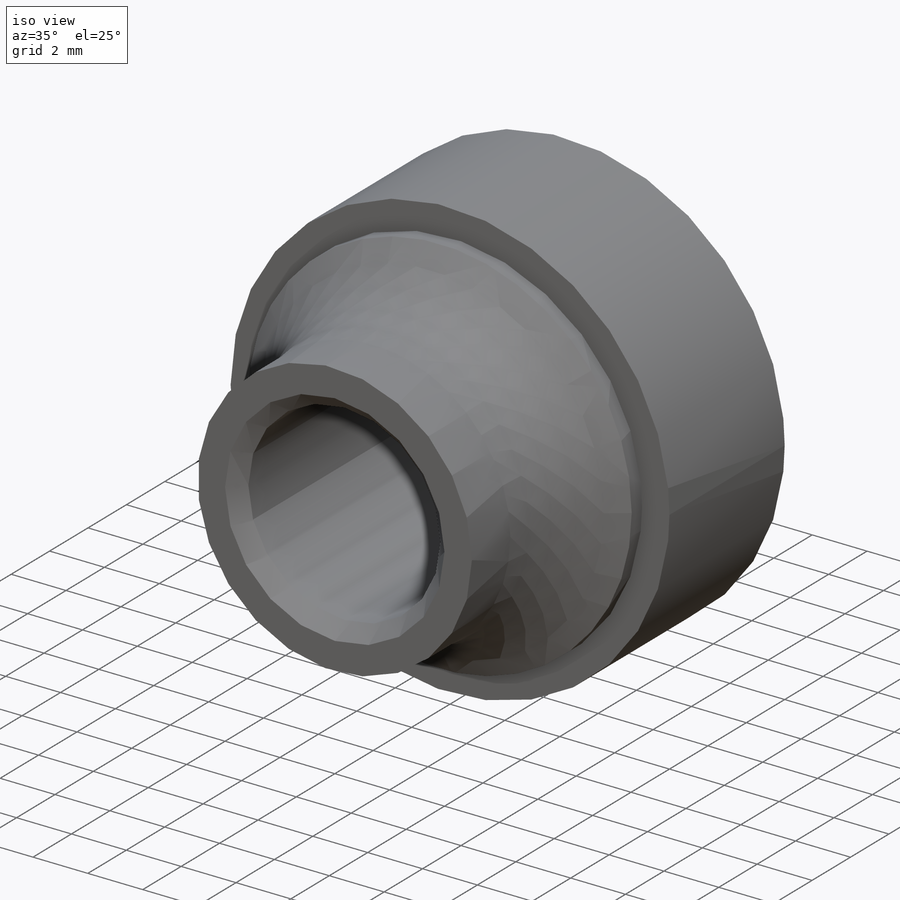
[diagram: iso view]
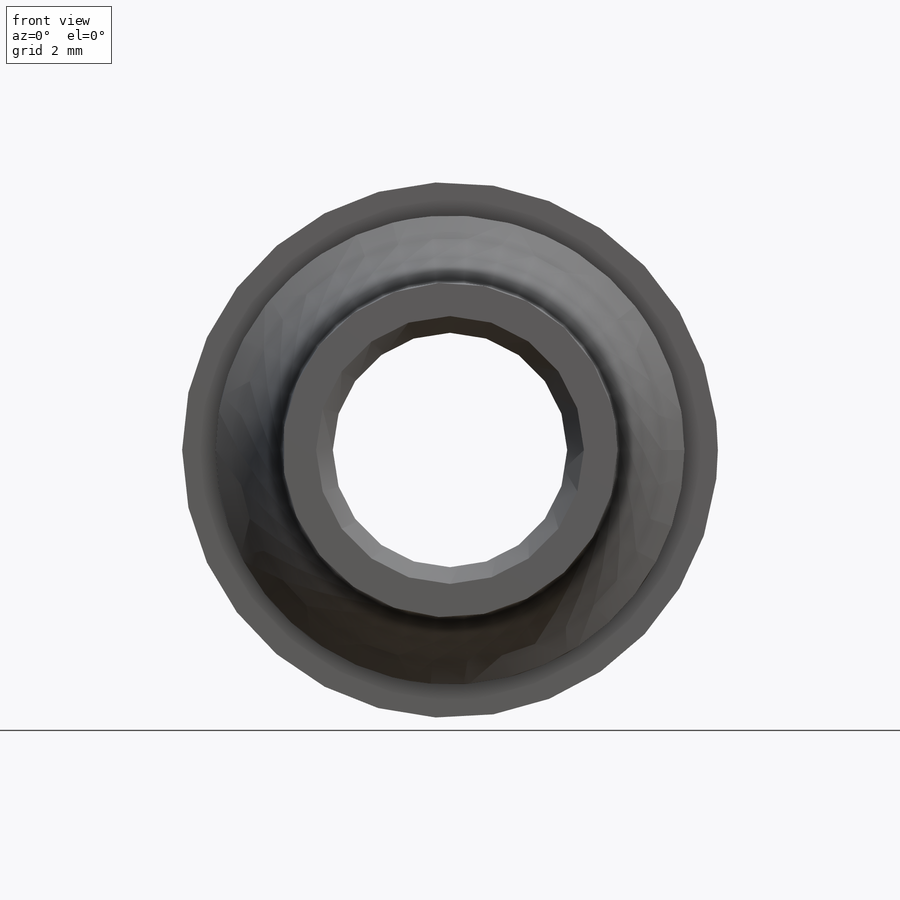
[diagram: front view]
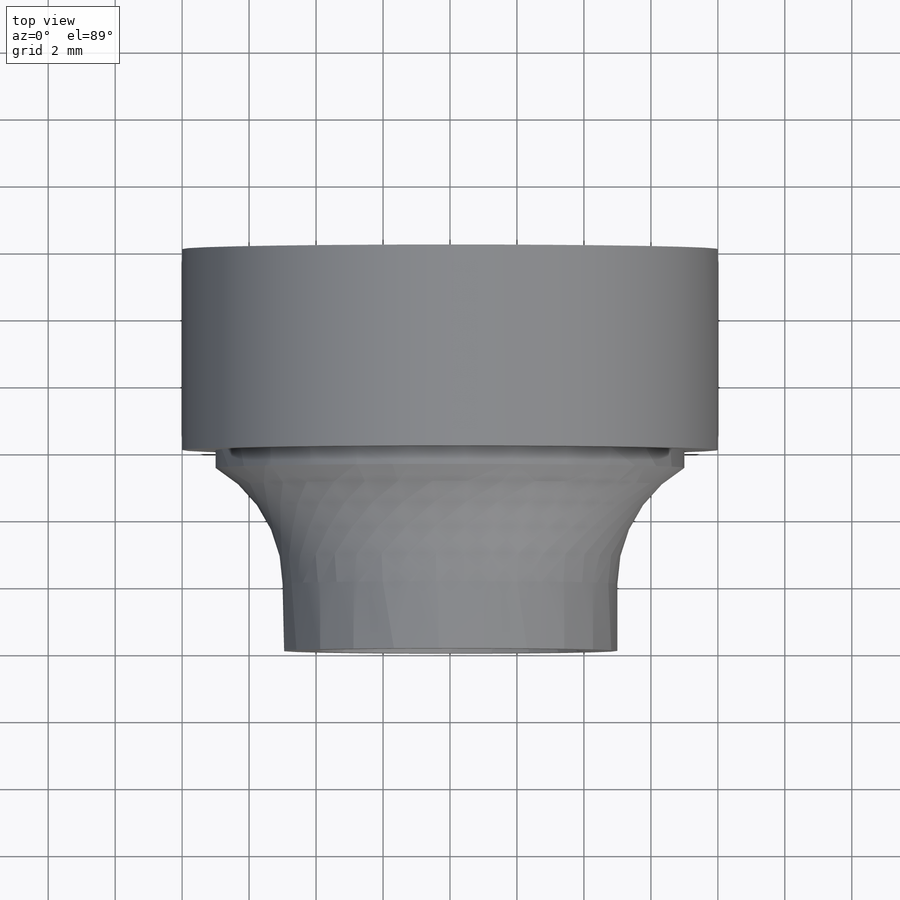
[diagram: top view]
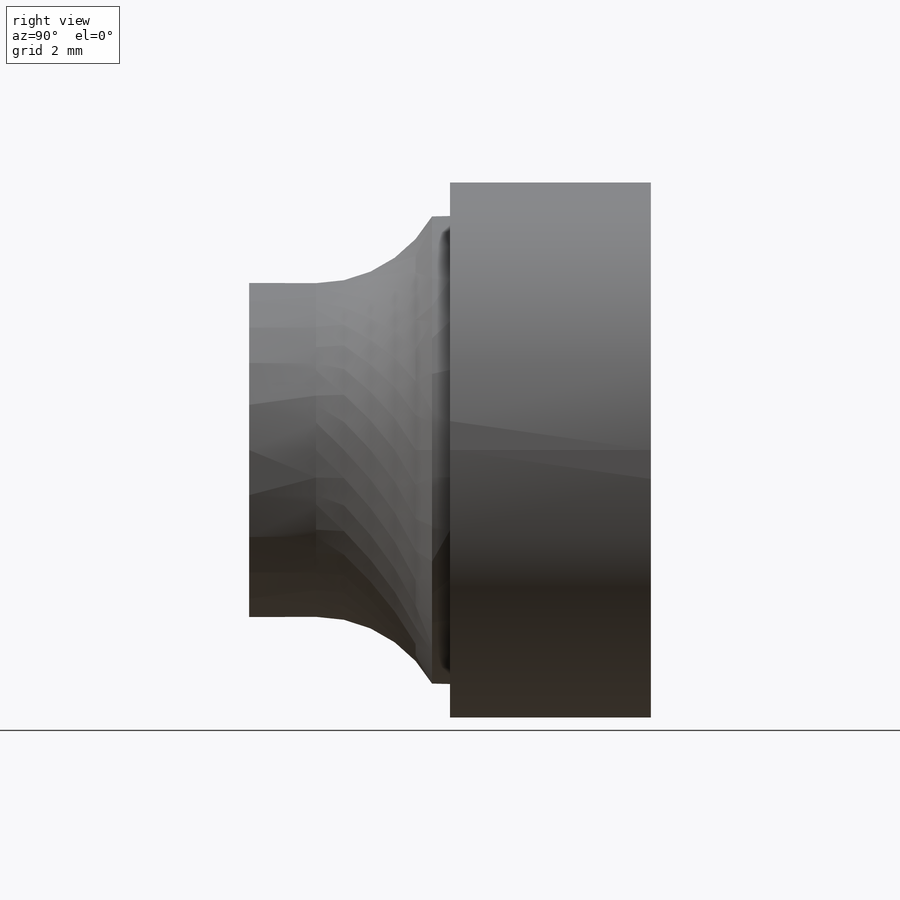
[diagram: right view]
SOLIDWORKS PART (.sldprt)
format: sldprt  version: not decoded by parser v0  size: 212,480 bytes
history: native  units: mm
features: sketch x4, plane x3, extrude x2, material x1, cut_revolve x1, cut_extrude x1, thread x1, chamfer x1 (+10 scaffold rows collapsed)
feature tree (24):
  scaffold x10  (default folders/planes/origin — collapsed)
  material  "Материал <не указан>"
  plane  "Спереди"
  plane  "Сверху"
  plane  "Справа"
  sketch  "Эскиз1"  dims[D1=16.0mm]
  extrude  "Вытянуть1"  Depth=6mm
  sketch  "Эскиз2"  dims[D1=14.0mm]
  extrude  "Вытянуть2"  Depth=6mm
  sketch  "Эскиз3"  dims[D3=8.0mm D1=4.0mm D2=9.0mm]
  cut_revolve  "Вырез-Повернуть1"  Angle=360deg
  sketch  "Эскиз4"  dims[D1=7.0mm]
  cut_extrude  "Вырез-Вытянуть1"  [1 undecoded]
  thread  "Условное изображение резьбы2"  Diameter=8mm  [1 undecoded]
  chamfer  "Фаска1"  Distance=0.5mm Angle=45deg
decode coverage: 9 of 10 modeling features carry decoded parameters
note: 2 parameter values undecoded
note: suppression state not decoded; provenance and decode notes live in map.json
